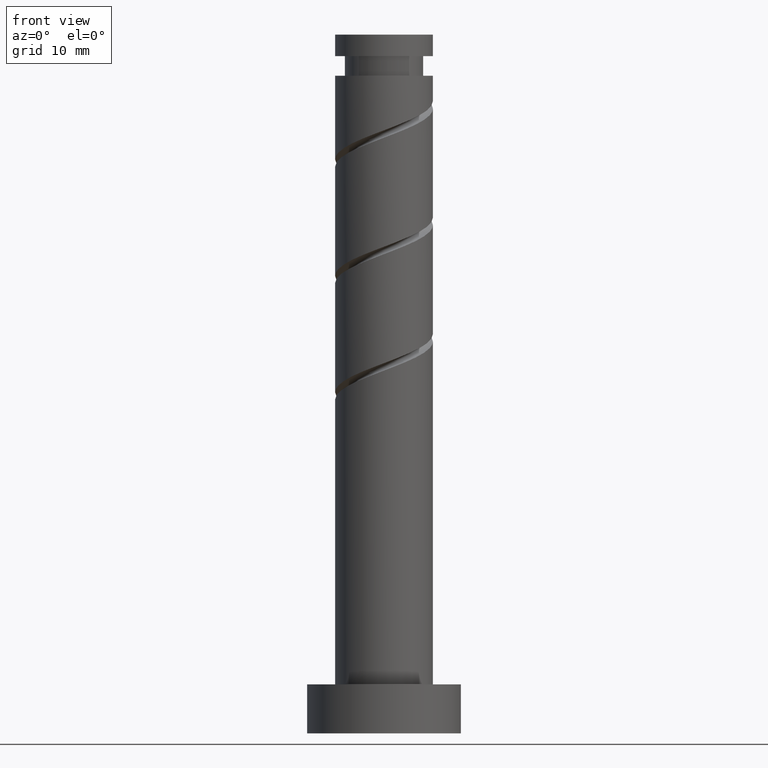
[diagram: clean part render]
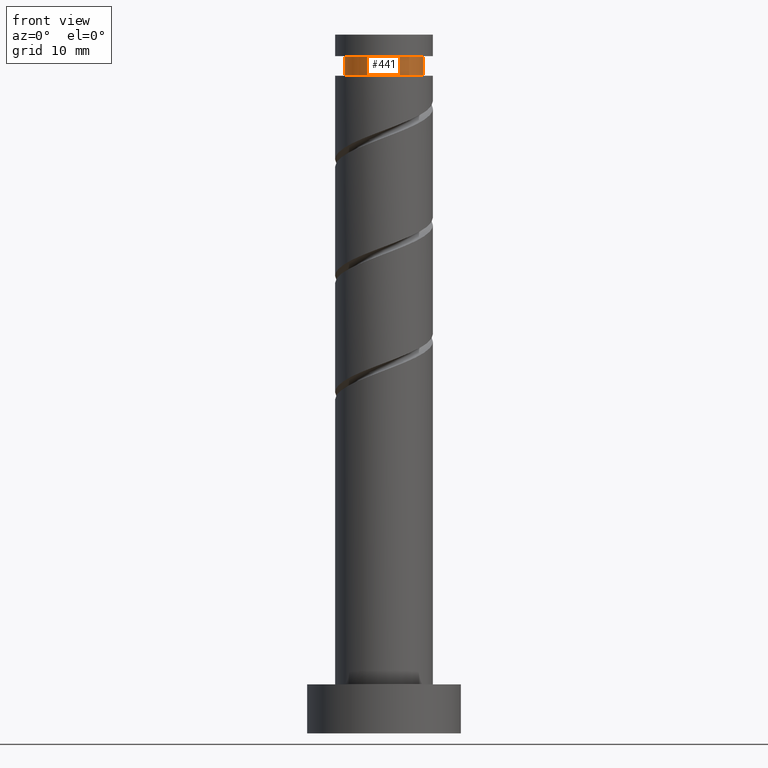
[diagram: same view with one face highlighted and labeled with its STEP entity id]
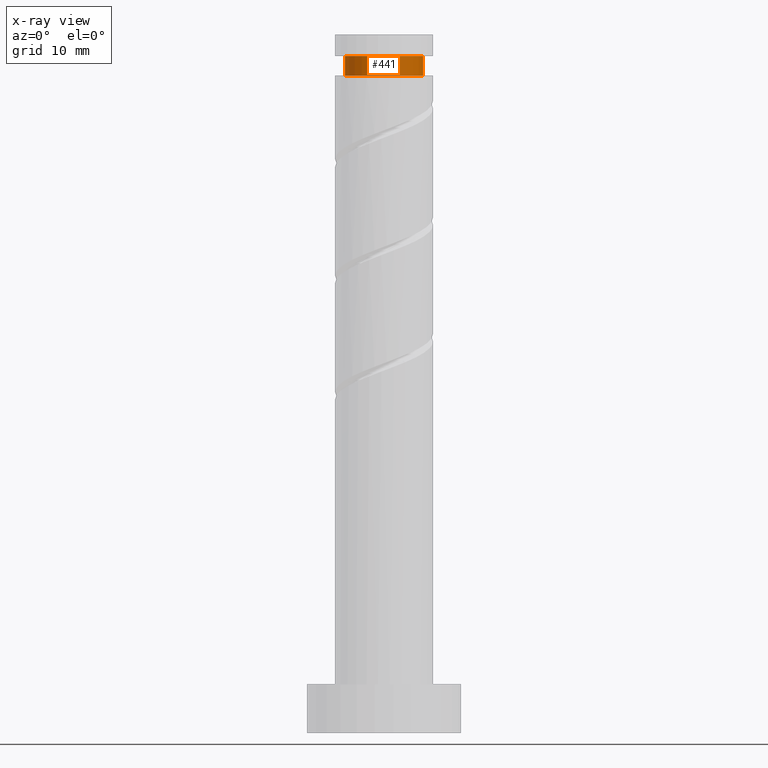
[diagram: x-ray of the same camera — body ghosted, the highlighted face saturated]
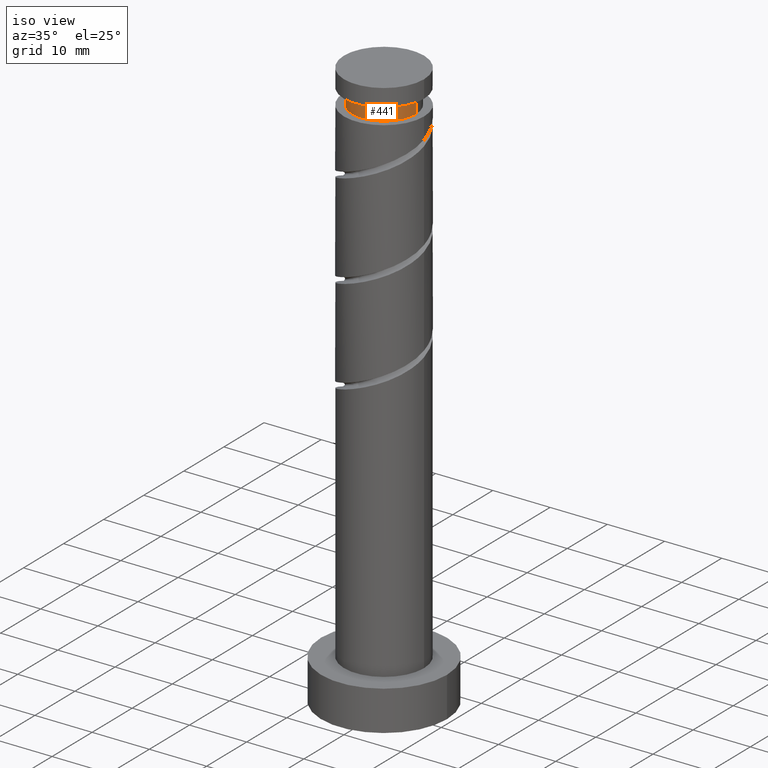
[diagram: same view with one face highlighted and labeled with its STEP entity id]
A machine part, front view. The second image highlights one B-rep face of the part: STEP entity #441.
The next image is the same camera in x-ray: the body ghosted, the highlighted face saturated — about 0% of this face is hidden behind the body in this view.
A second angle (iso view) of the same face is appended — the face is thin or edge-on in the first view.
In plain terms, the highlighted cylindrical surface (partial cylindrical patch) has radius 5.6 mm, axis along (-0, -0, -1).
Its self-contained STEP definition (entity closure, byte-faithful):
#76 = DIRECTION ( 'NONE',  ( -0.000000000000000000, -0.000000000000000000, -1.000000000000000000 ) ) ;
#269 = CYLINDRICAL_SURFACE ( 'NONE', #325, 5.600000000000000533 ) ;
#325 = AXIS2_PLACEMENT_3D ( 'NONE', #488, #939, #826 ) ;
#336 = EDGE_LOOP ( 'NONE', ( #902, #342, #911, #1477 ) ) ;
#342 = ORIENTED_EDGE ( 'NONE', *, *, #900, .T. ) ;
#349 = VERTEX_POINT ( 'NONE', #1291 ) ;
#368 = EDGE_CURVE ( 'NONE', #1463, #788, #1162, .T. ) ;
#441 = ADVANCED_FACE ( 'NONE', ( #712 ), #269, .T. ) ;
#453 = CARTESIAN_POINT ( 'NONE',  ( -5.600000000000000533, 0.000000000000000000, 94.12573029265075775 ) ) ;
#459 = CARTESIAN_POINT ( 'NONE',  ( -5.600000000000000533, 0.000000000000000000, 0.000000000000000000 ) ) ;
#488 = CARTESIAN_POINT ( 'NONE',  ( 0.000000000000000000, 0.000000000000000000, 0.000000000000000000 ) ) ;
#511 = AXIS2_PLACEMENT_3D ( 'NONE', #932, #832, #1052 ) ;
#670 = DIRECTION ( 'NONE',  ( -1.000000000000000000, 0.000000000000000000, 0.000000000000000000 ) ) ;
#695 = DIRECTION ( 'NONE',  ( -0.000000000000000000, -0.000000000000000000, -1.000000000000000000 ) ) ;
#712 = FACE_OUTER_BOUND ( 'NONE', #336, .T. ) ;
#733 = VECTOR ( 'NONE', #1484, 1000.000000000000000 ) ;
#788 = VERTEX_POINT ( 'NONE', #453 ) ;
#796 = VERTEX_POINT ( 'NONE', #1469 ) ;
#819 = EDGE_CURVE ( 'NONE', #349, #788, #887, .T. ) ;
#826 = DIRECTION ( 'NONE',  ( -1.000000000000000000, 0.000000000000000000, 0.000000000000000000 ) ) ;
#832 = DIRECTION ( 'NONE',  ( -0.000000000000000000, -0.000000000000000000, -1.000000000000000000 ) ) ;
#841 = EDGE_CURVE ( 'NONE', #796, #1463, #993, .T. ) ;
#887 = LINE ( 'NONE', #459, #892 ) ;
#892 = VECTOR ( 'NONE', #695, 1000.000000000000000 ) ;
#900 = EDGE_CURVE ( 'NONE', #796, #349, #1376, .T. ) ;
#902 = ORIENTED_EDGE ( 'NONE', *, *, #841, .F. ) ;
#911 = ORIENTED_EDGE ( 'NONE', *, *, #819, .T. ) ;
#932 = CARTESIAN_POINT ( 'NONE',  ( 0.000000000000000000, 0.000000000000000000, 94.12573029265075775 ) ) ;
#939 = DIRECTION ( 'NONE',  ( -0.000000000000000000, -0.000000000000000000, -1.000000000000000000 ) ) ;
#993 = LINE ( 'NONE', #1374, #733 ) ;
#1020 = CARTESIAN_POINT ( 'NONE',  ( 0.000000000000000000, 0.000000000000000000, 96.92573029265075490 ) ) ;
#1048 = CARTESIAN_POINT ( 'NONE',  ( 5.600000000000000533, 6.858022075225178552E-16, 94.12573029265075775 ) ) ;
#1052 = DIRECTION ( 'NONE',  ( -1.000000000000000000, 0.000000000000000000, 0.000000000000000000 ) ) ;
#1162 = CIRCLE ( 'NONE', #511, 5.600000000000000533 ) ;
#1188 = AXIS2_PLACEMENT_3D ( 'NONE', #1020, #76, #670 ) ;
#1291 = CARTESIAN_POINT ( 'NONE',  ( -5.600000000000001421, 0.000000000000000000, 96.92573029265075490 ) ) ;
#1374 = CARTESIAN_POINT ( 'NONE',  ( 5.600000000000000533, 6.858022075225178552E-16, 0.000000000000000000 ) ) ;
#1376 = CIRCLE ( 'NONE', #1188, 5.600000000000001421 ) ;
#1463 = VERTEX_POINT ( 'NONE', #1048 ) ;
#1469 = CARTESIAN_POINT ( 'NONE',  ( 5.600000000000001421, 6.858022075225180524E-16, 96.92573029265075490 ) ) ;
#1477 = ORIENTED_EDGE ( 'NONE', *, *, #368, .F. ) ;
#1484 = DIRECTION ( 'NONE',  ( -0.000000000000000000, -0.000000000000000000, -1.000000000000000000 ) ) ;